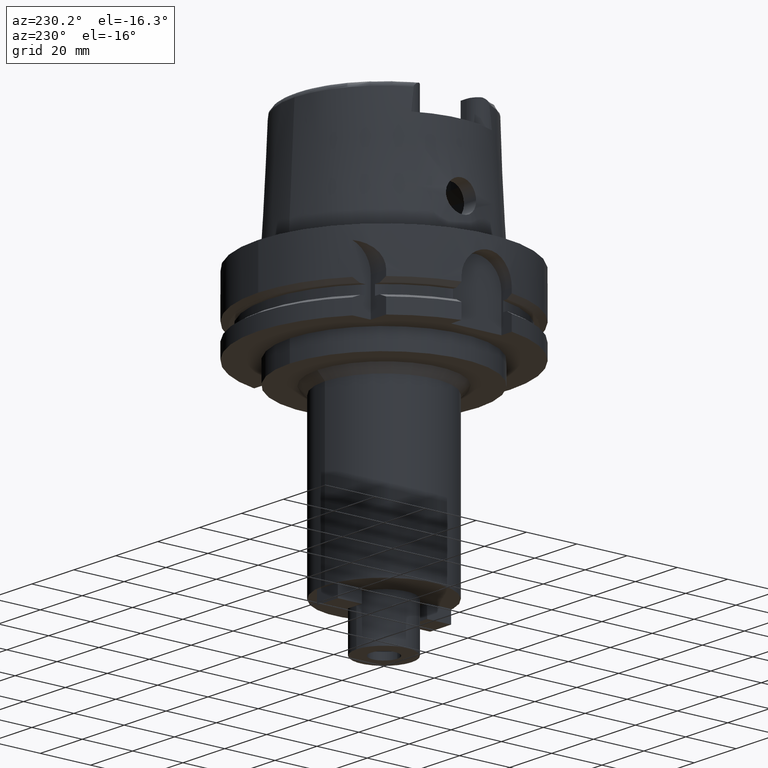
[diagram: clean part render]
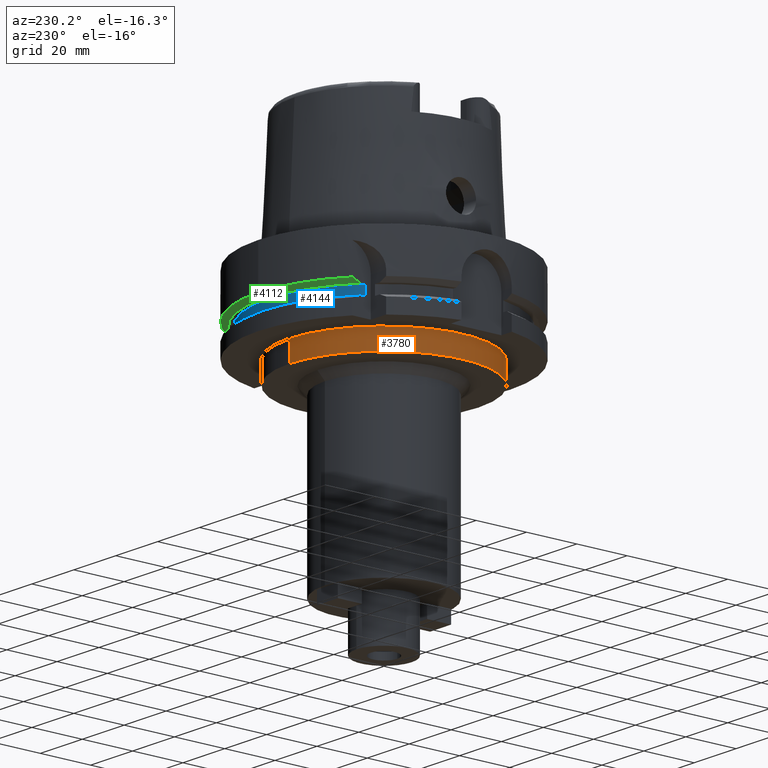
[diagram: same view with three faces highlighted in distinct colors, each labeled with its STEP entity id]
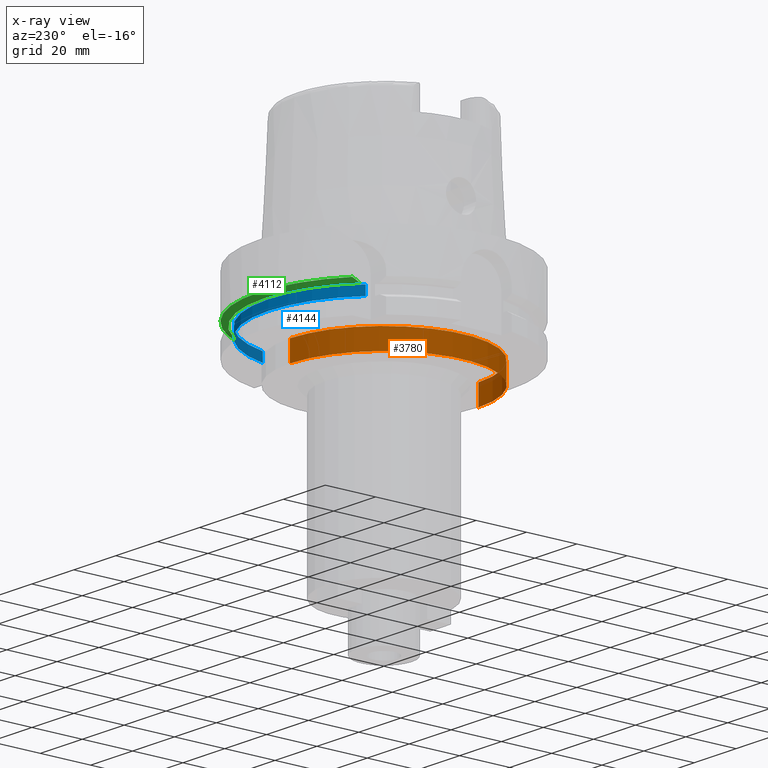
[diagram: x-ray of the same camera — body ghosted, the three highlighted faces saturated]
A machine part, auxiliary view with three faces highlighted in distinct colors.
The next image is the same camera in x-ray (body ghosted, the three faces saturated) — at least one of them is partly hidden behind the body in this view.
Their STEP definitions:

[orange] entity #3780 — the highlighted cylindrical surface (partial cylindrical patch) has radius 37.5 mm, axis along (0, 0, 1).
#1251=CARTESIAN_POINT('',(0.E0,0.E0,-3.7E1));
#1252=DIRECTION('',(0.E0,0.E0,1.E0));
#1253=DIRECTION('',(0.E0,1.E0,0.E0));
#1254=AXIS2_PLACEMENT_3D('',#1251,#1252,#1253);
#1275=DIRECTION('',(0.E0,0.E0,-1.E0));
#1276=VECTOR('',#1275,8.E0);
#1277=CARTESIAN_POINT('',(0.E0,3.75E1,-2.9E1));
#1278=LINE('',#1277,#1276);
#1282=DIRECTION('',(0.E0,0.E0,-1.E0));
#1283=VECTOR('',#1282,8.E0);
#1284=CARTESIAN_POINT('',(0.E0,-3.75E1,-2.9E1));
#1285=LINE('',#1284,#1283);
#1350=CARTESIAN_POINT('',(0.E0,0.E0,-2.9E1));
#1351=DIRECTION('',(0.E0,0.E0,-1.E0));
#1352=DIRECTION('',(0.E0,-1.E0,0.E0));
#1353=AXIS2_PLACEMENT_3D('',#1350,#1351,#1352);
#2650=CARTESIAN_POINT('',(0.E0,-3.75E1,-3.7E1));
#2651=CARTESIAN_POINT('',(0.E0,3.75E1,-3.7E1));
#2652=VERTEX_POINT('',#2650);
#2653=VERTEX_POINT('',#2651);
#2654=CARTESIAN_POINT('',(0.E0,3.75E1,-2.9E1));
#2655=VERTEX_POINT('',#2654);
#2656=CARTESIAN_POINT('',(0.E0,-3.75E1,-2.9E1));
#2657=VERTEX_POINT('',#2656);
#3768=CARTESIAN_POINT('',(0.E0,0.E0,-1.3165E2));
#3769=DIRECTION('',(0.E0,0.E0,1.E0));
#3770=DIRECTION('',(0.E0,1.E0,0.E0));
#3771=AXIS2_PLACEMENT_3D('',#3768,#3769,#3770);
#3772=CYLINDRICAL_SURFACE('',#3771,3.75E1);
#3773=ORIENTED_EDGE('',*,*,#3758,.F.);
#3775=ORIENTED_EDGE('',*,*,#3774,.F.);
#3776=ORIENTED_EDGE('',*,*,#3761,.T.);
#3777=ORIENTED_EDGE('',*,*,#3744,.F.);
#3778=EDGE_LOOP('',(#3773,#3775,#3776,#3777));
#3779=FACE_OUTER_BOUND('',#3778,.F.);
#1255=CIRCLE('',#1254,3.75E1);
#1354=CIRCLE('',#1353,3.75E1);
#3744=EDGE_CURVE('',#2653,#2652,#1255,.T.);
#3758=EDGE_CURVE('',#2655,#2653,#1278,.T.);
#3761=EDGE_CURVE('',#2657,#2652,#1285,.T.);
#3774=EDGE_CURVE('',#2657,#2655,#1354,.T.);
#3780=ADVANCED_FACE('',(#3779),#3772,.T.);

[blue] entity #4144 — the highlighted cylindrical surface (partial cylindrical patch) has radius 46 mm, axis along (0, 0, 1).
#1675=CARTESIAN_POINT('',(0.E0,0.E0,-1.8125E1));
#1676=DIRECTION('',(0.E0,0.E0,-1.E0));
#1677=DIRECTION('',(-6.847826086957E-1,7.287474039940E-1,0.E0));
#1678=AXIS2_PLACEMENT_3D('',#1675,#1676,#1677);
#1683=CARTESIAN_POINT('',(0.E0,0.E0,-1.8125E1));
#1684=DIRECTION('',(0.E0,0.E0,-1.E0));
#1685=DIRECTION('',(0.E0,1.E0,0.E0));
#1686=AXIS2_PLACEMENT_3D('',#1683,#1684,#1685);
#1714=DIRECTION('',(0.E0,0.E0,-1.E0));
#1715=VECTOR('',#1714,3.75E0);
#1716=CARTESIAN_POINT('',(-3.15E1,3.352238058372E1,-1.8125E1));
#1717=LINE('',#1716,#1715);
#1721=DIRECTION('',(0.E0,0.E0,1.E0));
#1722=VECTOR('',#1721,3.75E0);
#1723=CARTESIAN_POINT('',(4.466542286825E1,1.1E1,-2.1875E1));
#1724=LINE('',#1723,#1722);
#1751=CARTESIAN_POINT('',(0.E0,0.E0,-2.1875E1));
#1752=DIRECTION('',(0.E0,0.E0,1.E0));
#1753=DIRECTION('',(9.709874536577E-1,2.391304347826E-1,0.E0));
#1754=AXIS2_PLACEMENT_3D('',#1751,#1752,#1753);
#1759=CARTESIAN_POINT('',(0.E0,0.E0,-2.1875E1));
#1760=DIRECTION('',(0.E0,0.E0,1.E0));
#1761=DIRECTION('',(0.E0,1.E0,0.E0));
#1762=AXIS2_PLACEMENT_3D('',#1759,#1760,#1761);
#2687=CARTESIAN_POINT('',(-3.15E1,3.352238058372E1,-2.1875E1));
#2688=VERTEX_POINT('',#2687);
#2689=CARTESIAN_POINT('',(-3.15E1,3.352238058372E1,-1.8125E1));
#2690=VERTEX_POINT('',#2689);
#2751=CARTESIAN_POINT('',(4.466542286825E1,1.1E1,-2.1875E1));
#2752=VERTEX_POINT('',#2751);
#2753=CARTESIAN_POINT('',(6.348635329208E-14,4.6E1,-2.1875E1));
#2754=VERTEX_POINT('',#2753);
#2761=CARTESIAN_POINT('',(4.466542286825E1,1.1E1,-1.8125E1));
#2762=VERTEX_POINT('',#2761);
#2763=CARTESIAN_POINT('',(-1.953992523340E-14,4.6E1,-1.8125E1));
#2764=VERTEX_POINT('',#2763);
#4129=CARTESIAN_POINT('',(0.E0,0.E0,-1.3165E2));
#4130=DIRECTION('',(0.E0,0.E0,1.E0));
#4131=DIRECTION('',(0.E0,1.E0,0.E0));
#4132=AXIS2_PLACEMENT_3D('',#4129,#4130,#4131);
#4133=CYLINDRICAL_SURFACE('',#4132,4.6E1);
#4134=ORIENTED_EDGE('',*,*,#3831,.T.);
#4136=ORIENTED_EDGE('',*,*,#4135,.F.);
#4138=ORIENTED_EDGE('',*,*,#4137,.F.);
#4139=ORIENTED_EDGE('',*,*,#3879,.T.);
#4140=ORIENTED_EDGE('',*,*,#4121,.F.);
#4141=ORIENTED_EDGE('',*,*,#4119,.F.);
#4142=EDGE_LOOP('',(#4134,#4136,#4138,#4139,#4140,#4141));
#4143=FACE_OUTER_BOUND('',#4142,.F.);
#1679=CIRCLE('',#1678,4.6E1);
#1687=CIRCLE('',#1686,4.6E1);
#1755=CIRCLE('',#1754,4.6E1);
#1763=CIRCLE('',#1762,4.6E1);
#3831=EDGE_CURVE('',#2690,#2688,#1717,.T.);
#3879=EDGE_CURVE('',#2752,#2762,#1724,.T.);
#4119=EDGE_CURVE('',#2690,#2764,#1679,.T.);
#4121=EDGE_CURVE('',#2764,#2762,#1687,.T.);
#4135=EDGE_CURVE('',#2754,#2688,#1763,.T.);
#4137=EDGE_CURVE('',#2752,#2754,#1755,.T.);
#4144=ADVANCED_FACE('',(#4143),#4133,.T.);

[green] entity #4112 — the highlighted conical surface has half-angle 60 deg.
#1380=CARTESIAN_POINT('',(-3.150000097281E1,3.571639618472E1,-1.8125E1));
#1381=CARTESIAN_POINT('',(-3.150000097281E1,3.606333863821E1,
-1.797477179943E1));
#1382=CARTESIAN_POINT('',(-3.150000002064E1,3.675646915239E1,
-1.767266204693E1));
#1383=CARTESIAN_POINT('',(-3.149999846856E1,3.779429574907E1,
-1.721518165955E1));
#1384=CARTESIAN_POINT('',(-3.150000355959E1,3.848477495946E1,
-1.690706900025E1));
#1385=CARTESIAN_POINT('',(-3.150000355959E1,3.882975374305E1,
-1.675239179145E1));
#1649=CARTESIAN_POINT('',(4.633477721644E1,1.1E1,-1.8125E1));
#1650=CARTESIAN_POINT('',(4.660605711265E1,1.1E1,-1.797261191789E1));
#1651=CARTESIAN_POINT('',(4.714851446811E1,1.1E1,-1.766774350267E1));
#1652=CARTESIAN_POINT('',(4.796191616323E1,1.1E1,-1.721020456770E1));
#1653=CARTESIAN_POINT('',(4.850399904748E1,1.1E1,-1.690503024962E1));
#1654=CARTESIAN_POINT('',(4.877499359303E1,1.1E1,-1.675240473581E1));
#1659=CARTESIAN_POINT('',(0.E0,0.E0,-1.675240473581E1));
#1660=DIRECTION('',(0.E0,0.E0,1.E0));
#1661=DIRECTION('',(9.754998718606E-1,2.2E-1,0.E0));
#1662=AXIS2_PLACEMENT_3D('',#1659,#1660,#1661);
#1667=CARTESIAN_POINT('',(0.E0,0.E0,-1.675240473581E1));
#1668=DIRECTION('',(0.E0,0.E0,1.E0));
#1669=DIRECTION('',(0.E0,1.E0,0.E0));
#1670=AXIS2_PLACEMENT_3D('',#1667,#1668,#1669);
#1698=CARTESIAN_POINT('',(0.E0,0.E0,-1.8125E1));
#1699=DIRECTION('',(0.E0,0.E0,1.E0));
#1700=DIRECTION('',(9.729578356533E-1,2.309827916554E-1,0.E0));
#1701=AXIS2_PLACEMENT_3D('',#1698,#1699,#1700);
#1706=CARTESIAN_POINT('',(0.E0,0.E0,-1.8125E1));
#1707=DIRECTION('',(0.E0,0.E0,1.E0));
#1708=DIRECTION('',(0.E0,1.E0,0.E0));
#1709=AXIS2_PLACEMENT_3D('',#1706,#1707,#1708);
#2691=CARTESIAN_POINT('',(-3.150000097281E1,3.571639618472E1,-1.8125E1));
#2692=VERTEX_POINT('',#2691);
#2693=VERTEX_POINT('',#1385);
#2771=CARTESIAN_POINT('',(4.633477721644E1,1.1E1,-1.8125E1));
#2772=VERTEX_POINT('',#2771);
#2773=CARTESIAN_POINT('',(0.E0,4.762259526419E1,-1.8125E1));
#2774=VERTEX_POINT('',#2773);
#2781=VERTEX_POINT('',#1654);
#2782=CARTESIAN_POINT('',(0.E0,5.E1,-1.675240473581E1));
#2783=VERTEX_POINT('',#2782);
#4096=CARTESIAN_POINT('',(0.E0,0.E0,-1.743870236790E1));
#4097=DIRECTION('',(0.E0,0.E0,1.E0));
#4098=DIRECTION('',(0.E0,1.E0,0.E0));
#4099=AXIS2_PLACEMENT_3D('',#4096,#4097,#4098);
#4100=CONICAL_SURFACE('',#4099,4.881129763209E1,6.E1);
#4101=ORIENTED_EDGE('',*,*,#3835,.F.);
#4103=ORIENTED_EDGE('',*,*,#4102,.F.);
#4105=ORIENTED_EDGE('',*,*,#4104,.F.);
#4106=ORIENTED_EDGE('',*,*,#3875,.T.);
#4108=ORIENTED_EDGE('',*,*,#4107,.T.);
#4109=ORIENTED_EDGE('',*,*,#4075,.T.);
#4110=EDGE_LOOP('',(#4101,#4103,#4105,#4106,#4108,#4109));
#4111=FACE_OUTER_BOUND('',#4110,.F.);
#1386=B_SPLINE_CURVE_WITH_KNOTS('',3,(#1380,#1381,#1382,#1383,#1384,#1385),
.UNSPECIFIED.,.F.,.F.,(4,1,1,4),(0.E0,3.333333333333E-1,6.666666666667E-1,1.E0),
.UNSPECIFIED.);
#1655=B_SPLINE_CURVE_WITH_KNOTS('',3,(#1649,#1650,#1651,#1652,#1653,#1654),
.UNSPECIFIED.,.F.,.F.,(4,1,1,4),(0.E0,3.333333333333E-1,6.666666666667E-1,1.E0),
.UNSPECIFIED.);
#1663=CIRCLE('',#1662,5.E1);
#1671=CIRCLE('',#1670,5.E1);
#1702=CIRCLE('',#1701,4.762259526419E1);
#1710=CIRCLE('',#1709,4.762259526419E1);
#3835=EDGE_CURVE('',#2692,#2693,#1386,.T.);
#3875=EDGE_CURVE('',#2772,#2781,#1655,.T.);
#4075=EDGE_CURVE('',#2783,#2693,#1671,.T.);
#4102=EDGE_CURVE('',#2774,#2692,#1710,.T.);
#4104=EDGE_CURVE('',#2772,#2774,#1702,.T.);
#4107=EDGE_CURVE('',#2781,#2783,#1663,.T.);
#4112=ADVANCED_FACE('',(#4111),#4100,.T.);